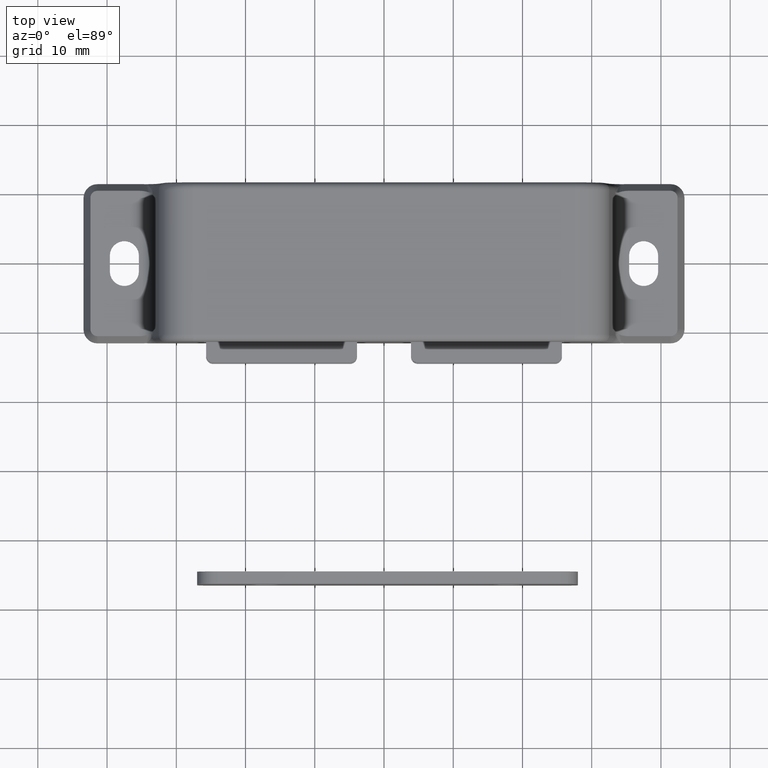
[diagram: clean part render]
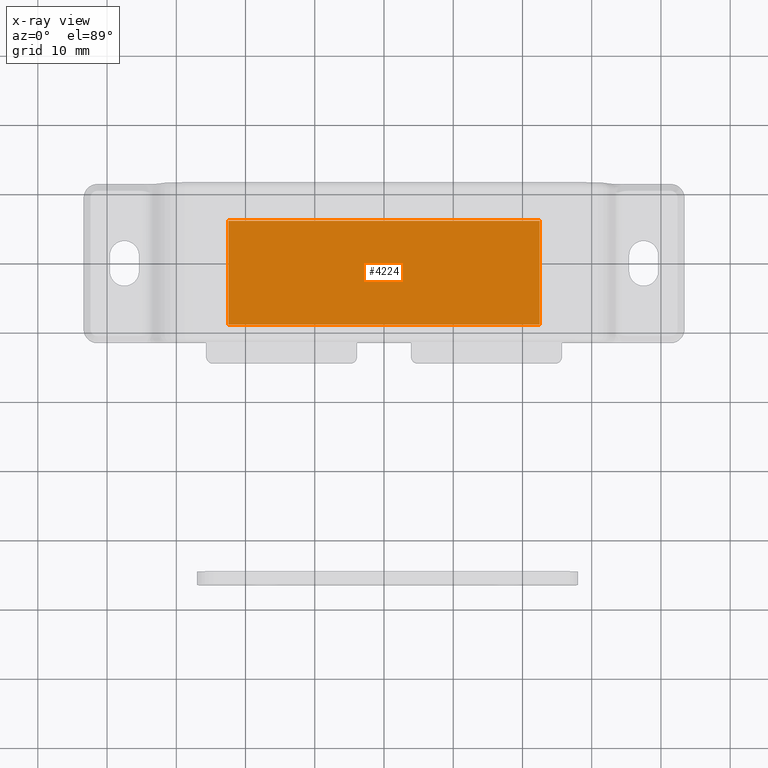
[diagram: x-ray — body ghosted, one internal face saturated and labeled with its STEP entity id]
A machine part, top view, then the same camera in x-ray: the body is ghosted and one INTERNAL B-rep face — a face not visible from any outside direction — is saturated and labeled: STEP entity #4224.
In plain terms, the highlighted planar face has unit normal (0, 0, 1).
Its self-contained STEP definition (entity closure, byte-faithful):
#522=FACE_OUTER_BOUND('',#776,.T.);
#776=EDGE_LOOP('',(#3752,#3753,#3754,#3755));
#1198=LINE('',#7841,#1634);
#1202=LINE('',#7848,#1638);
#1203=LINE('',#7851,#1639);
#1204=LINE('',#7852,#1640);
#1634=VECTOR('',#5624,15.);
#1638=VECTOR('',#5630,45.);
#1639=VECTOR('',#5633,15.);
#1640=VECTOR('',#5634,45.);
#2026=VERTEX_POINT('',#7838);
#2027=VERTEX_POINT('',#7840);
#2029=VERTEX_POINT('',#7846);
#2030=VERTEX_POINT('',#7850);
#2608=EDGE_CURVE('',#2026,#2027,#1198,.T.);
#2612=EDGE_CURVE('',#2026,#2029,#1202,.T.);
#2613=EDGE_CURVE('',#2030,#2029,#1203,.T.);
#2614=EDGE_CURVE('',#2027,#2030,#1204,.T.);
#3752=ORIENTED_EDGE('',*,*,#2612,.T.);
#3753=ORIENTED_EDGE('',*,*,#2613,.F.);
#3754=ORIENTED_EDGE('',*,*,#2614,.F.);
#3755=ORIENTED_EDGE('',*,*,#2608,.F.);
#3998=PLANE('',#4572);
#4224=ADVANCED_FACE('',(#522),#3998,.T.);
#4572=AXIS2_PLACEMENT_3D('',#7849,#5631,#5632);
#5624=DIRECTION('',(0.,1.,-7.40148683083438E-16));
#5630=DIRECTION('',(1.,0.,0.));
#5631=DIRECTION('center_axis',(0.,7.40148683083438E-16,1.));
#5632=DIRECTION('ref_axis',(0.,-1.,0.));
#5633=DIRECTION('',(0.,-1.,7.40148683083438E-16));
#5634=DIRECTION('',(1.,0.,0.));
#7838=CARTESIAN_POINT('',(-22.5,-9.,10.800000000003));
#7840=CARTESIAN_POINT('',(-22.5,6.,10.800000000003));
#7841=CARTESIAN_POINT('',(-22.5,-9.,10.800000000003));
#7846=CARTESIAN_POINT('',(22.5,-9.,10.800000000003));
#7848=CARTESIAN_POINT('',(0.,-9.,10.800000000003));
#7849=CARTESIAN_POINT('Origin',(0.,6.,10.800000000003));
#7850=CARTESIAN_POINT('',(22.5,6.,10.800000000003));
#7851=CARTESIAN_POINT('',(22.5,-9.,10.800000000003));
#7852=CARTESIAN_POINT('',(0.,6.,10.800000000003));